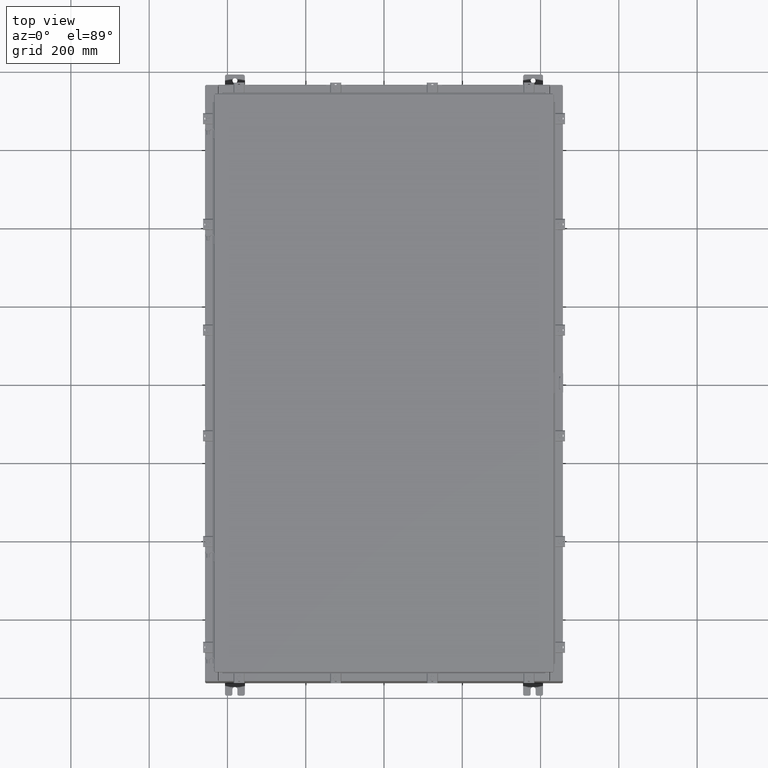
[diagram: clean part render]
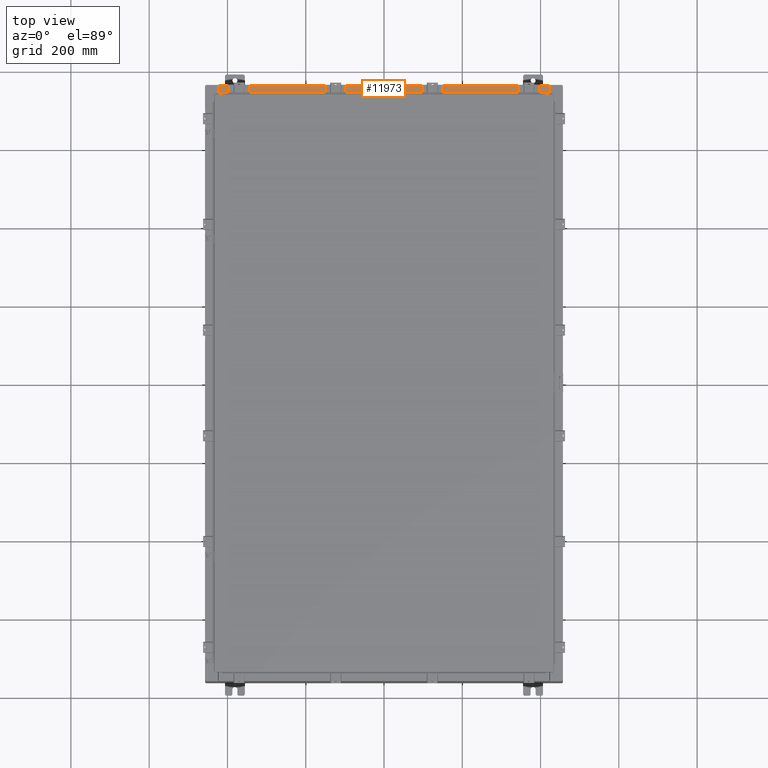
[diagram: same view with one face highlighted and labeled with its STEP entity id]
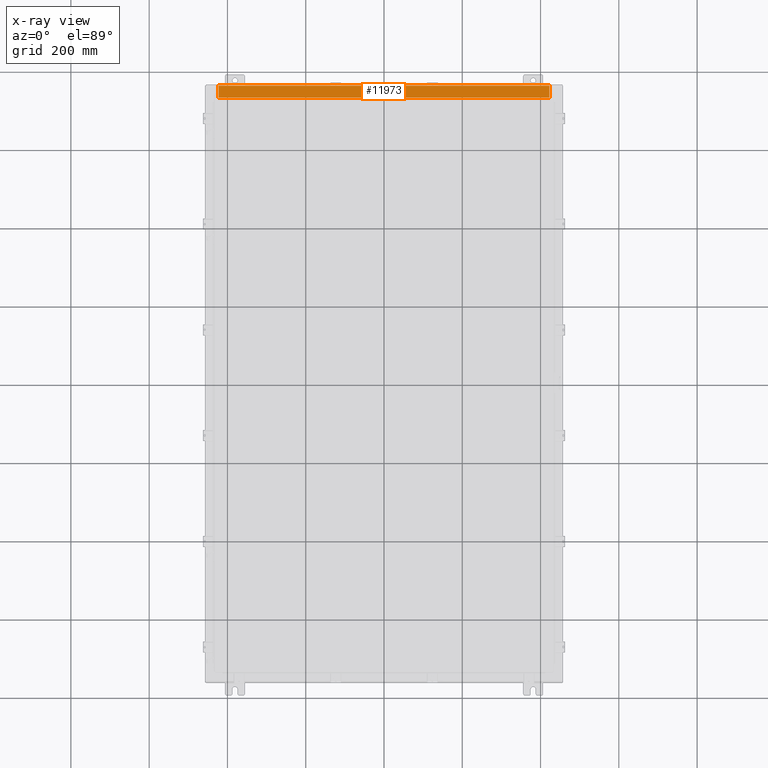
[diagram: x-ray of the same camera — body ghosted, the highlighted face saturated]
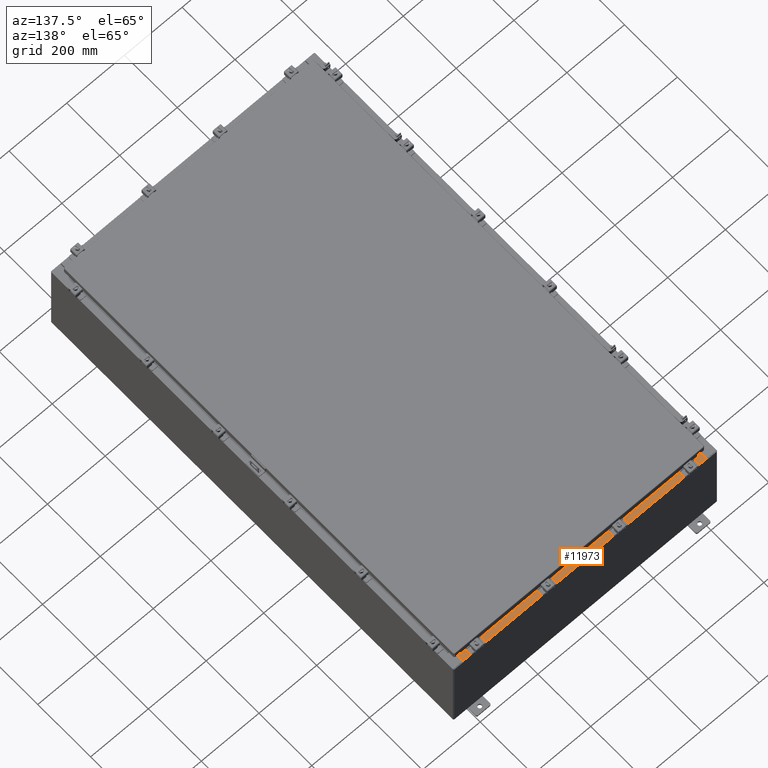
[diagram: same view with one face highlighted and labeled with its STEP entity id]
A machine part, top view. The second image highlights one B-rep face of the part: STEP entity #11973.
The next image is the same camera in x-ray: the body ghosted, the highlighted face saturated — about 0% of this face is hidden behind the body in this view.
A second angle (auxiliary view) of the same face is appended — the face is thin or edge-on in the first view.
In plain terms, the highlighted planar face has unit normal (0, 0, 1).
Its self-contained STEP definition (entity closure, byte-faithful):
#550 = CARTESIAN_POINT ( 'NONE',  ( 16.63720000000000400, -0.08769999999999948700, 5.999999999999999100 ) ) ;
#658 = VERTEX_POINT ( 'NONE', #9101 ) ;
#1001 = ORIENTED_EDGE ( 'NONE', *, *, #14475, .F. ) ;
#2142 = FACE_OUTER_BOUND ( 'NONE', #26410, .T. ) ;
#2162 = LINE ( 'NONE', #12169, #18472 ) ;
#2271 = CARTESIAN_POINT ( 'NONE',  ( -16.63719999999999600, -1.287299999999998600, 6.000000000000002700 ) ) ;
#3145 = ORIENTED_EDGE ( 'NONE', *, *, #16298, .T. ) ;
#4504 = PLANE ( 'NONE',  #5553 ) ;
#5213 = DIRECTION ( 'NONE',  ( -1.000000000000000000, 0.0000000000000000000, 0.0000000000000000000 ) ) ;
#5330 = ORIENTED_EDGE ( 'NONE', *, *, #16593, .F. ) ;
#5553 = AXIS2_PLACEMENT_3D ( 'NONE', #17252, #19412, #6633 ) ;
#6581 = DIRECTION ( 'NONE',  ( -0.0000000000000000000, -1.000000000000000000, 3.566381192773190000E-015 ) ) ;
#6633 = DIRECTION ( 'NONE',  ( 0.0000000000000000000, -1.000000000000000000, 2.674785894579892700E-015 ) ) ;
#7489 = VECTOR ( 'NONE', #5213, 39.37007874015748100 ) ;
#9101 = CARTESIAN_POINT ( 'NONE',  ( -16.63719999999999600, -0.08769999999999972300, 5.999999999999999100 ) ) ;
#11958 = VERTEX_POINT ( 'NONE', #2271 ) ;
#11973 = ADVANCED_FACE ( 'NONE', ( #2142 ), #4504, .T. ) ;
#12169 = CARTESIAN_POINT ( 'NONE',  ( -5.156971724347648400E-018, -0.08769999999999972300, 5.999999999999999100 ) ) ;
#12171 = VERTEX_POINT ( 'NONE', #22087 ) ;
#12366 = DIRECTION ( 'NONE',  ( -0.0000000000000000000, 1.000000000000000000, -2.674785894579892700E-015 ) ) ;
#12444 = VECTOR ( 'NONE', #6581, 39.37007874015748100 ) ;
#12741 = VERTEX_POINT ( 'NONE', #550 ) ;
#14306 = DIRECTION ( 'NONE',  ( -1.000000000000000000, 3.284023746380717400E-017, -8.784060394284559800E-032 ) ) ;
#14475 = EDGE_CURVE ( 'NONE', #11958, #658, #22560, .T. ) ;
#15286 = ORIENTED_EDGE ( 'NONE', *, *, #16100, .F. ) ;
#16100 = EDGE_CURVE ( 'NONE', #12171, #11958, #18155, .T. ) ;
#16298 = EDGE_CURVE ( 'NONE', #12741, #658, #2162, .T. ) ;
#16593 = EDGE_CURVE ( 'NONE', #12741, #12171, #18800, .T. ) ;
#16898 = VECTOR ( 'NONE', #12366, 39.37007874015748100 ) ;
#17252 = CARTESIAN_POINT ( 'NONE',  ( -2.276882898771239300E-018, 1.610972251716581800E-014, 5.999999999999999100 ) ) ;
#18155 = LINE ( 'NONE', #20111, #7489 ) ;
#18472 = VECTOR ( 'NONE', #14306, 39.37007874015748100 ) ;
#18800 = LINE ( 'NONE', #19259, #12444 ) ;
#19259 = CARTESIAN_POINT ( 'NONE',  ( 16.63720000000000400, -1.300299999999999800, 6.000000000000003600 ) ) ;
#19412 = DIRECTION ( 'NONE',  ( 0.0000000000000000000, 2.674785894579892700E-015, 1.000000000000000000 ) ) ;
#20111 = CARTESIAN_POINT ( 'NONE',  ( 16.63720000000000400, -1.287299999999999400, 6.000000000000001800 ) ) ;
#22087 = CARTESIAN_POINT ( 'NONE',  ( 16.63720000000000400, -1.287299999999999400, 6.000000000000003600 ) ) ;
#22560 = LINE ( 'NONE', #27283, #16898 ) ;
#26410 = EDGE_LOOP ( 'NONE', ( #1001, #15286, #5330, #3145 ) ) ;
#27283 = CARTESIAN_POINT ( 'NONE',  ( -16.63719999999999600, -0.07469999999999973900, 5.999999999999999100 ) ) ;